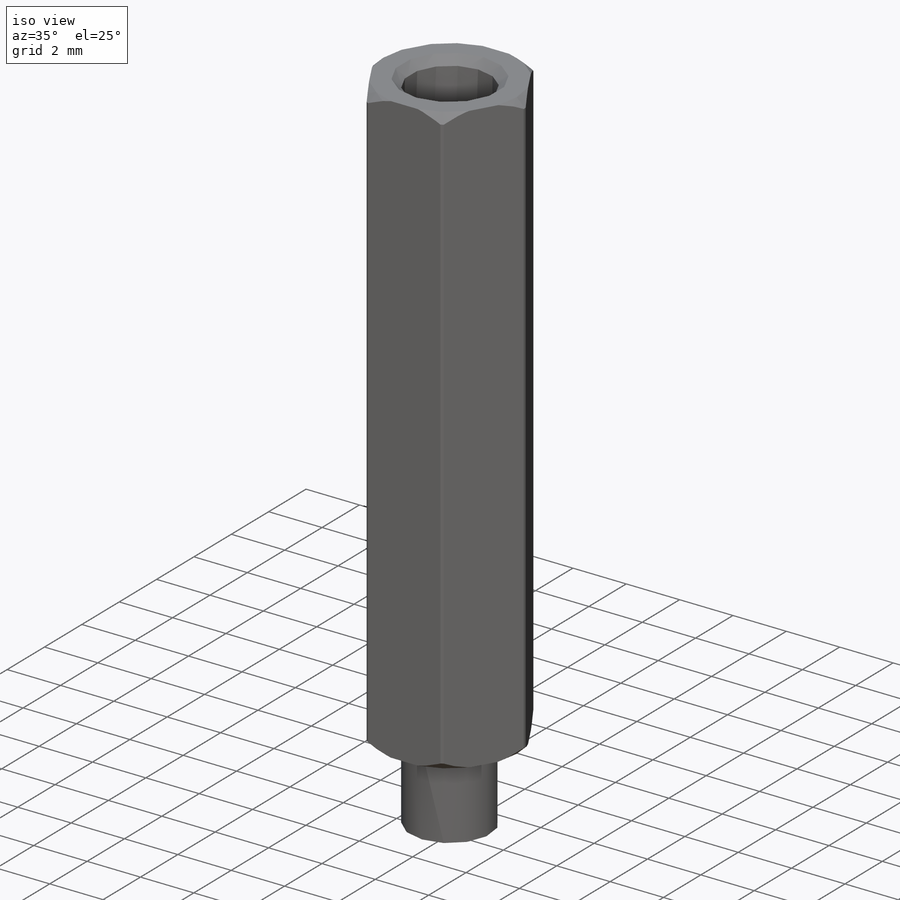
[diagram: iso view]
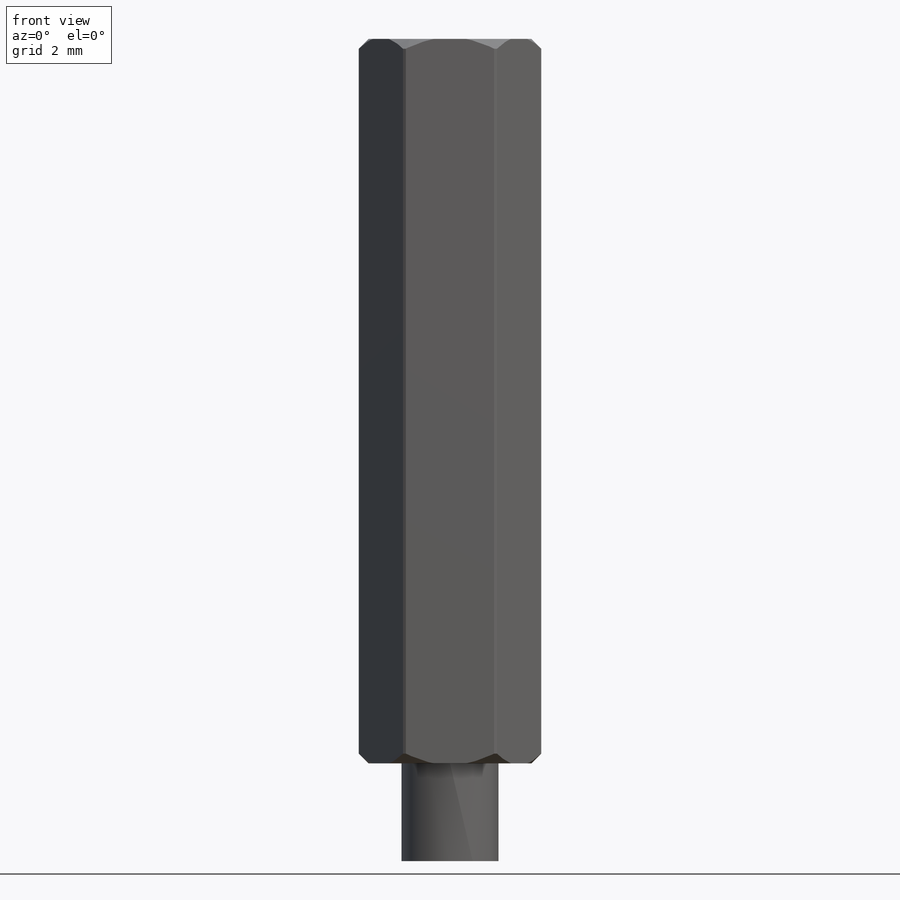
[diagram: front view]
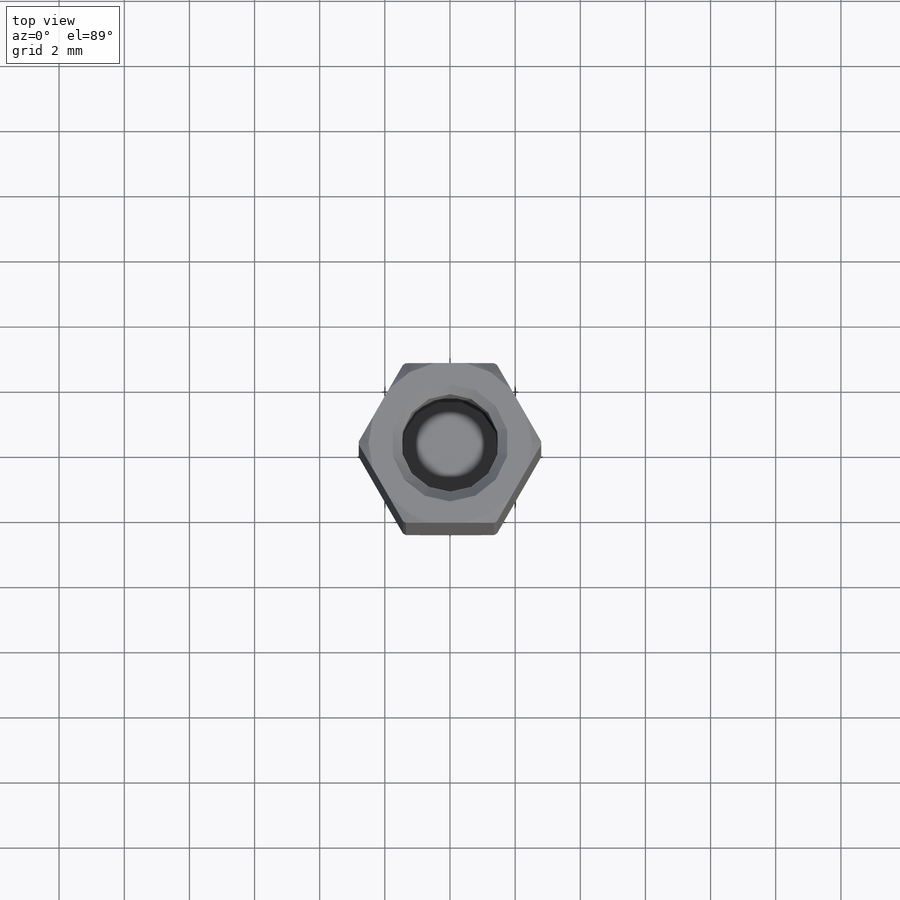
[diagram: top view]
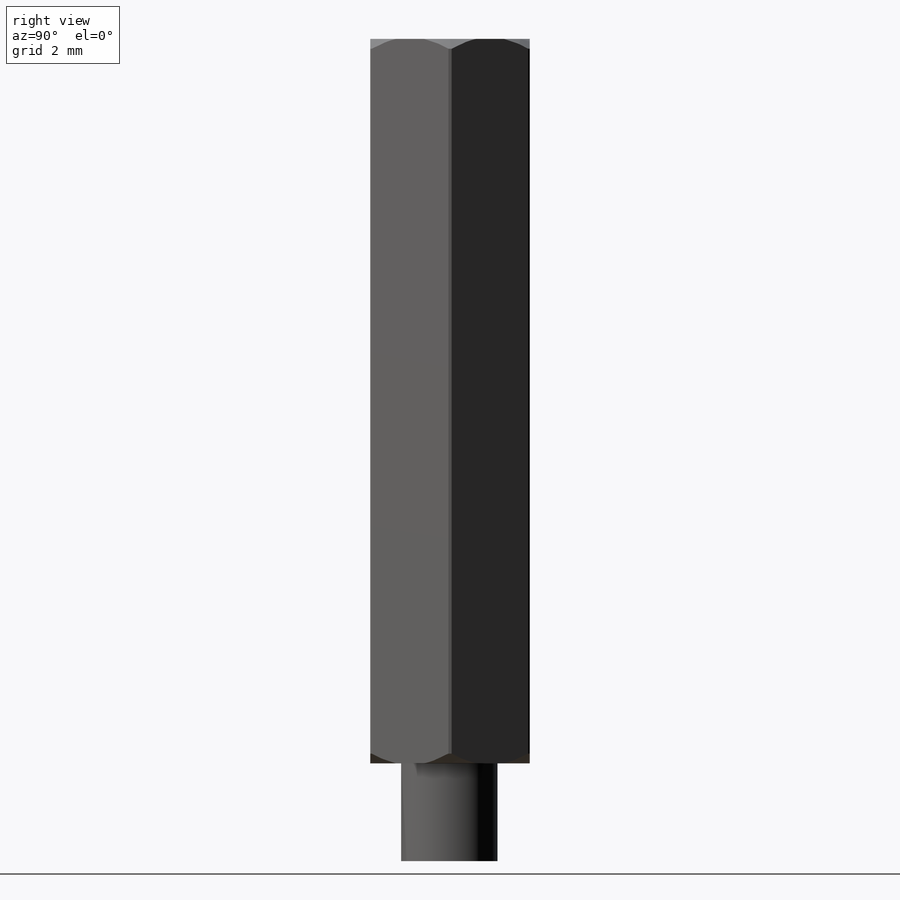
[diagram: right view]
SOLIDWORKS PART (.sldprt)
format: sldprt  version: not decoded by parser v0  size: 265,728 bytes
history: native  units: mm
features: sketch x3, cut_extrude x2, material x1, revolve x1, chamfer x1 + 1 further entry (+12 scaffold rows collapsed)
feature tree (21):
  scaffold x12  (default folders/planes/origin — collapsed)
  material  "Material <not specified>"
  "Design Table"
  sketch  "Sketch2"  dims[D1=3.0mm D2=5.6mm D3=~16.972557mm D4=~54.042578mm]
  revolve  "Revolve3"  Angle=360deg
  sketch  "Sketch3"  dims[D1=3.0mm]
  cut_extrude  "Extrude1"  Depth=12mm
  chamfer  "Chamfer1"  Distance=0.3mm Angle=45deg
  sketch  "Sketch4"  dims[D1=4.9mm]
  cut_extrude  "Extrude2"  [1 undecoded]
decode coverage: 6 of 7 modeling features carry decoded parameters; 1 rows unclassified (native names shown)
note: ~ marks probable driven/reference dimensions
note: 1 parameter value undecoded
note: suppression state not decoded; provenance and decode notes live in map.json
